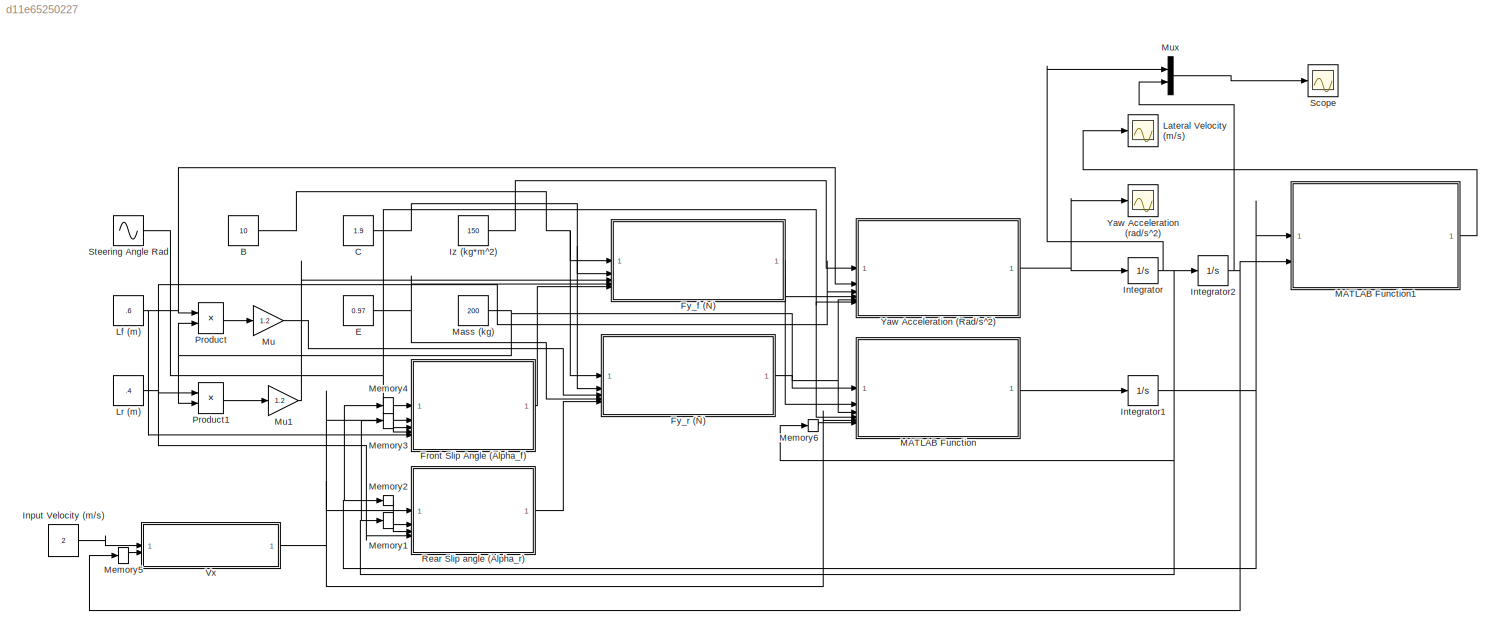
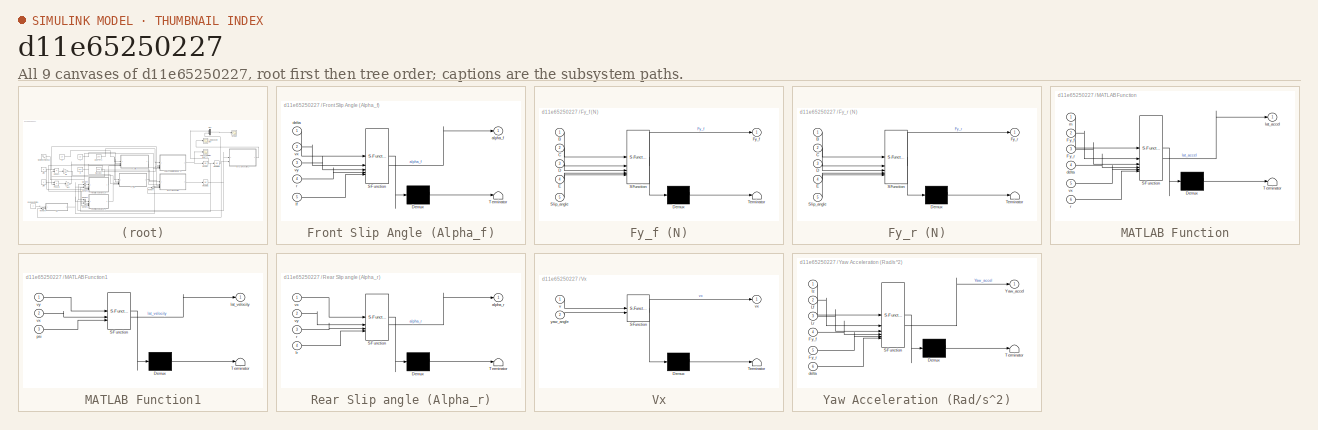
[diagram: thumbnail index - all 9 canvases of the model, root first then tree order]
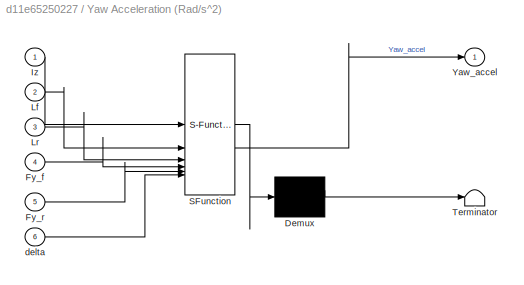
MODEL slx_d11e65250227
KIND model
CONFIG AbsTol = auto
CONFIG EnableMultiTasking = off
CONFIG FixedStep = 0.001
CONFIG MaxStep = auto
CONFIG MinStep = auto
CONFIG RelTol = 1e-3
CONFIG SampleTimeConstraint = Unconstrained
CONFIG SolverName = ode8
CONFIG StartTime = 0.0
CONFIG StopTime = 15
BLOCK [Constant] B
  Value = 10
BLOCK [Constant] C
  Value = 1.9
BLOCK [Constant] E
  Value = 0.97
BLOCK [SubSystem] Front Slip Angle (Alpha_f)
  ErrorFcn = Stateflow.Translate.translate
  PermitHierarchicalResolution = ExplicitOnly
  SFBlockType = MATLAB Function
  TreatAsAtomicUnit = on
BLOCK [Demux] Front Slip Angle (Alpha_f)/ Demux 
  Outputs = 1
BLOCK [S-Function] Front Slip Angle (Alpha_f)/ SFunction 
  EnableBusSupport = on
  FunctionName = sf_sfun
  PortCounts = [5 2]
  SFcnIsStateOwnerBlock = off
  SFunctionDeploymentMode = off
  Tag = Stateflow S-Function 2
BLOCK [Terminator] Front Slip Angle (Alpha_f)/ Terminator 
BLOCK [Outport] Front Slip Angle (Alpha_f)/alpha_f
BLOCK [Inport] Front Slip Angle (Alpha_f)/delta
BLOCK [Inport] Front Slip Angle (Alpha_f)/lf
  Port = 5
BLOCK [Inport] Front Slip Angle (Alpha_f)/r
  Port = 4
BLOCK [Inport] Front Slip Angle (Alpha_f)/vx
  Port = 2
BLOCK [Inport] Front Slip Angle (Alpha_f)/vy
  Port = 3
BLOCK [SubSystem] Fy_f (N)
  ErrorFcn = Stateflow.Translate.translate
  PermitHierarchicalResolution = ExplicitOnly
  SFBlockType = MATLAB Function
  TreatAsAtomicUnit = on
BLOCK [Demux] Fy_f (N)/ Demux 
  Outputs = 1
BLOCK [S-Function] Fy_f (N)/ SFunction 
  EnableBusSupport = on
  FunctionName = sf_sfun
  PortCounts = [5 2]
  SFcnIsStateOwnerBlock = off
  SFunctionDeploymentMode = off
  Tag = Stateflow S-Function 4
BLOCK [Terminator] Fy_f (N)/ Terminator 
BLOCK [Inport] Fy_f (N)/B
BLOCK [Inport] Fy_f (N)/C
  Port = 2
BLOCK [Inport] Fy_f (N)/D
  Port = 3
BLOCK [Inport] Fy_f (N)/E
  Port = 4
BLOCK [Outport] Fy_f (N)/Fy_f
  VectorParamsAs1DForOutWhenUnconnected = off
BLOCK [Inport] Fy_f (N)/Slip_angle
  Port = 5
BLOCK [SubSystem] Fy_r (N)
  ErrorFcn = Stateflow.Translate.translate
  PermitHierarchicalResolution = ExplicitOnly
  SFBlockType = MATLAB Function
  TreatAsAtomicUnit = on
BLOCK [Demux] Fy_r (N)/ Demux 
  Outputs = 1
BLOCK [S-Function] Fy_r (N)/ SFunction 
  EnableBusSupport = on
  FunctionName = sf_sfun
  PortCounts = [5 2]
  SFcnIsStateOwnerBlock = off
  SFunctionDeploymentMode = off
  Tag = Stateflow S-Function 5
BLOCK [Terminator] Fy_r (N)/ Terminator 
BLOCK [Inport] Fy_r (N)/B
BLOCK [Inport] Fy_r (N)/C
  Port = 2
BLOCK [Inport] Fy_r (N)/D
  Port = 3
BLOCK [Inport] Fy_r (N)/E
  Port = 4
BLOCK [Outport] Fy_r (N)/Fy_r
  VectorParamsAs1DForOutWhenUnconnected = off
BLOCK [Inport] Fy_r (N)/Slip_angle
  Port = 5
BLOCK [Constant] Input Velocity (m//s)
  Value = 2
BLOCK [Integrator] Integrator
BLOCK [Integrator] Integrator1
  InitialCondition = 0.001
BLOCK [Integrator] Integrator2
BLOCK [Constant] Iz (kg*m^2)
  Value = 150
BLOCK [Scope] Lateral Velocity (m//s)
  Floating = off
  NumInputPorts = 1
  ScopeSpecificationString = Simulink.scopes.TimeScopeBlockCfg('CurrentConfiguration', extmgr.ConfigurationSet(extmgr.Configuration('Core','General UI',true),extmgr.Configuration('Core','Source UI',true),extmgr.Configuration('Sources','WiredSimulink',true),extmgr.Configuration('Visuals','Time Domain',true,'SerializedDisplays',{struct('MinYLimReal','-0.08716','MaxYLimReal','0.08986','YLabelReal','','MinYLimMag','0.00000','MaxY...<+1460ch>
BLOCK [Constant] Lf (m)
  Value = .6
BLOCK [Constant] Lr (m)
  Value = .4
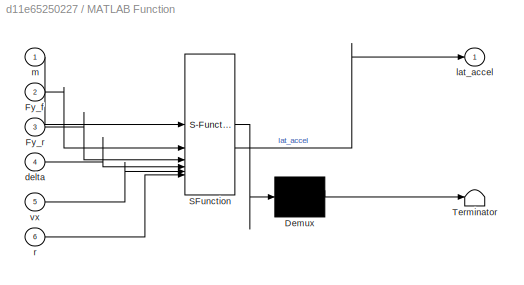
BLOCK [SubSystem] MATLAB Function
  ErrorFcn = Stateflow.Translate.translate
  PermitHierarchicalResolution = ExplicitOnly
  SFBlockType = MATLAB Function
  TreatAsAtomicUnit = on
BLOCK [Demux] MATLAB Function/ Demux 
  Outputs = 1
BLOCK [S-Function] MATLAB Function/ SFunction 
  EnableBusSupport = on
  FunctionName = sf_sfun
  PortCounts = [6 2]
  SFcnIsStateOwnerBlock = off
  SFunctionDeploymentMode = off
  Tag = Stateflow S-Function 7
BLOCK [Terminator] MATLAB Function/ Terminator 
BLOCK [Inport] MATLAB Function/Fy_f
  Port = 2
BLOCK [Inport] MATLAB Function/Fy_r
  Port = 3
BLOCK [Inport] MATLAB Function/delta
  Port = 4
BLOCK [Outport] MATLAB Function/lat_accel
BLOCK [Inport] MATLAB Function/m
BLOCK [Inport] MATLAB Function/r
  Port = 6
BLOCK [Inport] MATLAB Function/vx
  Port = 5
BLOCK [SubSystem] MATLAB Function1
  ErrorFcn = Stateflow.Translate.translate
  PermitHierarchicalResolution = ExplicitOnly
  SFBlockType = MATLAB Function
  TreatAsAtomicUnit = on
BLOCK [Demux] MATLAB Function1/ Demux 
  Outputs = 1
BLOCK [S-Function] MATLAB Function1/ SFunction 
  EnableBusSupport = on
  FunctionName = sf_sfun
  PortCounts = [3 2]
  SFcnIsStateOwnerBlock = off
  SFunctionDeploymentMode = off
  Tag = Stateflow S-Function 8
BLOCK [Terminator] MATLAB Function1/ Terminator 
BLOCK [Outport] MATLAB Function1/lat_velocity
BLOCK [Inport] MATLAB Function1/psi
  Port = 3
BLOCK [Inport] MATLAB Function1/vx
  Port = 2
BLOCK [Inport] MATLAB Function1/vy
BLOCK [Constant] Mass (kg)
  Value = 200
BLOCK [Memory] Memory1
  InheritSampleTime = on
BLOCK [Memory] Memory2
  InheritSampleTime = on
BLOCK [Memory] Memory3
  InheritSampleTime = on
BLOCK [Memory] Memory4
  InheritSampleTime = on
BLOCK [Memory] Memory5
  InheritSampleTime = on
BLOCK [Memory] Memory6
  InheritSampleTime = on
BLOCK [Gain] Mu
  Gain = 1.2
BLOCK [Gain] Mu1
  Gain = 1.2
BLOCK [Mux] Mux
  DisplayOption = bar
  Inputs = 2
BLOCK [Product] Product
BLOCK [Product] Product1
BLOCK [SubSystem] Rear Slip angle (Alpha_r)
  ErrorFcn = Stateflow.Translate.translate
  PermitHierarchicalResolution = ExplicitOnly
  SFBlockType = MATLAB Function
  TreatAsAtomicUnit = on
BLOCK [Demux] Rear Slip angle (Alpha_r)/ Demux 
  Outputs = 1
BLOCK [S-Function] Rear Slip angle (Alpha_r)/ SFunction 
  EnableBusSupport = on
  FunctionName = sf_sfun
  PortCounts = [4 2]
  SFcnIsStateOwnerBlock = off
  SFunctionDeploymentMode = off
  Tag = Stateflow S-Function 1
BLOCK [Terminator] Rear Slip angle (Alpha_r)/ Terminator 
BLOCK [Outport] Rear Slip angle (Alpha_r)/alpha_r
BLOCK [Inport] Rear Slip angle (Alpha_r)/lr
  Port = 4
BLOCK [Inport] Rear Slip angle (Alpha_r)/r
  Port = 3
BLOCK [Inport] Rear Slip angle (Alpha_r)/vx
BLOCK [Inport] Rear Slip angle (Alpha_r)/vy
  Port = 2
BLOCK [Scope] Scope
  Floating = off
  NumInputPorts = 1
  ScopeSpecificationString = Simulink.scopes.TimeScopeBlockCfg('CurrentConfiguration', extmgr.ConfigurationSet(extmgr.Configuration('Core','General UI',true),extmgr.Configuration('Core','Source UI',true),extmgr.Configuration('Sources','WiredSimulink',true,'DataLoggingVariableName','ScopeData1'),extmgr.Configuration('Visuals','Time Domain',true,'SerializedDisplays',{struct('MinYLimReal','-0.29673','MaxYLimReal','0.85238','YLab...<+1472ch>
BLOCK [Sin] Steering Angle Rad
  Amplitude = 0.1
  Frequency = .5
  SampleTime = 0
BLOCK [SubSystem] Vx
  ErrorFcn = Stateflow.Translate.translate
  PermitHierarchicalResolution = ExplicitOnly
  SFBlockType = MATLAB Function
  TreatAsAtomicUnit = on
BLOCK [Demux] Vx/ Demux 
  Outputs = 1
BLOCK [S-Function] Vx/ SFunction 
  EnableBusSupport = on
  FunctionName = sf_sfun
  PortCounts = [2 2]
  SFcnIsStateOwnerBlock = off
  SFunctionDeploymentMode = off
  Tag = Stateflow S-Function 3
BLOCK [Terminator] Vx/ Terminator 
BLOCK [Inport] Vx/v
BLOCK [Outport] Vx/vx
  VectorParamsAs1DForOutWhenUnconnected = off
BLOCK [Inport] Vx/yaw_angle
  Port = 2
BLOCK [SubSystem] Yaw Acceleration (Rad//s^2)
  ErrorFcn = Stateflow.Translate.translate
  PermitHierarchicalResolution = ExplicitOnly
  SFBlockType = MATLAB Function
  TreatAsAtomicUnit = on
BLOCK [Demux] Yaw Acceleration (Rad//s^2)/ Demux 
  Outputs = 1
BLOCK [S-Function] Yaw Acceleration (Rad//s^2)/ SFunction 
  EnableBusSupport = on
  FunctionName = sf_sfun
  PortCounts = [6 2]
  SFcnIsStateOwnerBlock = off
  SFunctionDeploymentMode = off
  Tag = Stateflow S-Function 6
BLOCK [Terminator] Yaw Acceleration (Rad//s^2)/ Terminator 
BLOCK [Inport] Yaw Acceleration (Rad//s^2)/Fy_f
  Port = 4
BLOCK [Inport] Yaw Acceleration (Rad//s^2)/Fy_r
  Port = 5
BLOCK [Inport] Yaw Acceleration (Rad//s^2)/Iz
BLOCK [Inport] Yaw Acceleration (Rad//s^2)/Lf
  Port = 2
BLOCK [Inport] Yaw Acceleration (Rad//s^2)/Lr
  Port = 3
BLOCK [Outport] Yaw Acceleration (Rad//s^2)/Yaw_accel
  VectorParamsAs1DForOutWhenUnconnected = off
BLOCK [Inport] Yaw Acceleration (Rad//s^2)/delta
  Port = 6
BLOCK [Scope] Yaw Acceleration (rad//s^2)
  Floating = off
  NumInputPorts = 1
  ScopeSpecificationString = Simulink.scopes.TimeScopeBlockCfg('CurrentConfiguration', extmgr.ConfigurationSet(extmgr.Configuration('Core','General UI',true),extmgr.Configuration('Core','Source UI',true),extmgr.Configuration('Sources','WiredSimulink',true,'DataLoggingVariableName','ScopeData1'),extmgr.Configuration('Visuals','Time Domain',true,'SerializedDisplays',{struct('MinYLimReal','-0.09813','MaxYLimReal','0.1208','YLabe...<+1532ch>
NET B:1 -> Fy_f (N):1, Fy_r (N):1
NET C:1 -> Fy_f (N):2, Fy_r (N):2
NET E:1 -> Fy_f (N):4, Fy_r (N):4
LINE Front Slip Angle (Alpha_f):1 -> Fy_f (N):5
NET Fy_f (N):1 -> MATLAB Function:2, Yaw Acceleration (Rad//s^2):4
NET Fy_r (N):1 -> MATLAB Function:3, Yaw Acceleration (Rad//s^2):5
LINE Input Velocity (m//s):1 -> Vx:1
NET Integrator1:1 -> MATLAB Function1:1, Memory2:1, Memory4:1
NET Integrator2:1 -> MATLAB Function1:3, Memory5:1, Mux:2
NET Integrator:1 -> Integrator2:1, Memory1:1, Memory3:1, Memory6:1, Mux:1
LINE Iz (kg*m^2):1 -> Yaw Acceleration (Rad//s^2):1
NET Lf (m):1 -> Front Slip Angle (Alpha_f):5, Product:1, Yaw Acceleration (Rad//s^2):2
NET Lr (m):1 -> Product1:1, Rear Slip angle (Alpha_r):4, Yaw Acceleration (Rad//s^2):3
LINE MATLAB Function1:1 -> Lateral Velocity (m//s):1
LINE MATLAB Function:1 -> Integrator1:1
NET Mass (kg):1 -> MATLAB Function:1, Product1:2, Product:2
LINE Memory1:1 -> Rear Slip angle (Alpha_r):3
LINE Memory2:1 -> Rear Slip angle (Alpha_r):2
LINE Memory3:1 -> Front Slip Angle (Alpha_f):4
LINE Memory4:1 -> Front Slip Angle (Alpha_f):3
LINE Memory5:1 -> Vx:2
LINE Memory6:1 -> MATLAB Function:6
LINE Mu1:1 -> Fy_f (N):3
LINE Mu:1 -> Fy_r (N):3
LINE Mux:1 -> Scope:1
LINE Product1:1 -> Mu1:1
LINE Product:1 -> Mu:1
LINE Rear Slip angle (Alpha_r):1 -> Fy_r (N):5
NET Steering Angle Rad:1 -> Front Slip Angle (Alpha_f):1, MATLAB Function:4, Yaw Acceleration (Rad//s^2):6
NET Vx:1 -> Front Slip Angle (Alpha_f):2, MATLAB Function:5, Rear Slip angle (Alpha_r):1
NET Yaw Acceleration (Rad//s^2):1 -> Integrator:1, Yaw Acceleration (rad//s^2):1
note: NET lines group one-source signal fan-out (src -> all destinations, sorted); 1:1 wires keep LINE
CHART Rear Slip angle (Alpha_r) states=1 transitions=1
  STATE_LABEL 'eML_blk_kernel()'
  STATE_LABEL 'SCRIPT:\nfunction alpha_r = fcn(vx,vy,r,lr)\n\nalpha_r = atan(vy-lr*r)/(vx);\n'
CHART Front Slip Angle (Alpha_f) states=1 transitions=1
  STATE_LABEL 'eML_blk_kernel()'
  STATE_LABEL 'SCRIPT:\nfunction alpha_f = fcn(delta,vx,vy,r,lf)\n\nalpha_f = delta - atan(vy+lf*r)/(vx);\n'
CHART Vx states=1 transitions=1
  STATE_LABEL 'eML_blk_kernel()'
  STATE_LABEL 'SCRIPT:\nfunction vx = fcn(v,yaw_angle)\n%#codegen\n\nvx = v*cos(yaw_angle);'
CHART Fy_f (N) states=1 transitions=1
  STATE_LABEL 'eML_blk_kernel()'
  STATE_LABEL 'SCRIPT:\nfunction Fy_f  = fcn(B,C,D,E,Slip_angle)\n\nFy_f = D*sin(C*atan(B*Slip_angle- E*(B*Slip_angle- atan(B*Slip_angle))));'
CHART Fy_r (N) states=1 transitions=1
  STATE_LABEL 'eML_blk_kernel()'
  STATE_LABEL 'SCRIPT:\nfunction Fy_r  = fcn(B,C,D,E,Slip_angle)\n\nFy_r = D*sin(C*atan(B*Slip_angle- E*(B*Slip_angle- atan(B*Slip_angle))));'
CHART Yaw Acceleration (Rad//s^2) states=1 transitions=1
  STATE_LABEL 'eML_blk_kernel()'
  STATE_LABEL 'SCRIPT:\nfunction Yaw_accel = fcn(Iz,Lf,Lr,Fy_f,Fy_r,delta)\n%#codegen\n\nYaw_accel = (1/Iz)*(Lf*Fy_f*cos(delta)-Lr*Fy_r);'
CHART MATLAB Function states=1 transitions=1
  STATE_LABEL 'eML_blk_kernel()'
  STATE_LABEL 'SCRIPT:\nfunction lat_accel = fcn(m,Fy_f, Fy_r,delta,vx,r)\n\nlat_accel = (1/m)*(Fy_f*cos(delta+Fy_r)-vx*r);\n'
CHART MATLAB Function1 states=1 transitions=1
  STATE_LABEL 'eML_blk_kernel()'
  STATE_LABEL 'SCRIPT:\nfunction lat_velocity = fcn(vy,vx,psi)\n\nlat_velocity = vy*cos(psi)+vx*sin(psi);\n'
CHART  states=0 transitions=0
CHART  states=0 transitions=0
CHART  states=0 transitions=0
CHART  states=0 transitions=0
CHART  states=0 transitions=0
CHART  states=0 transitions=0
CHART  states=0 transitions=0
CHART  states=0 transitions=0
